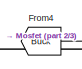
[diagram: root canvas - part 1/3, top center region]
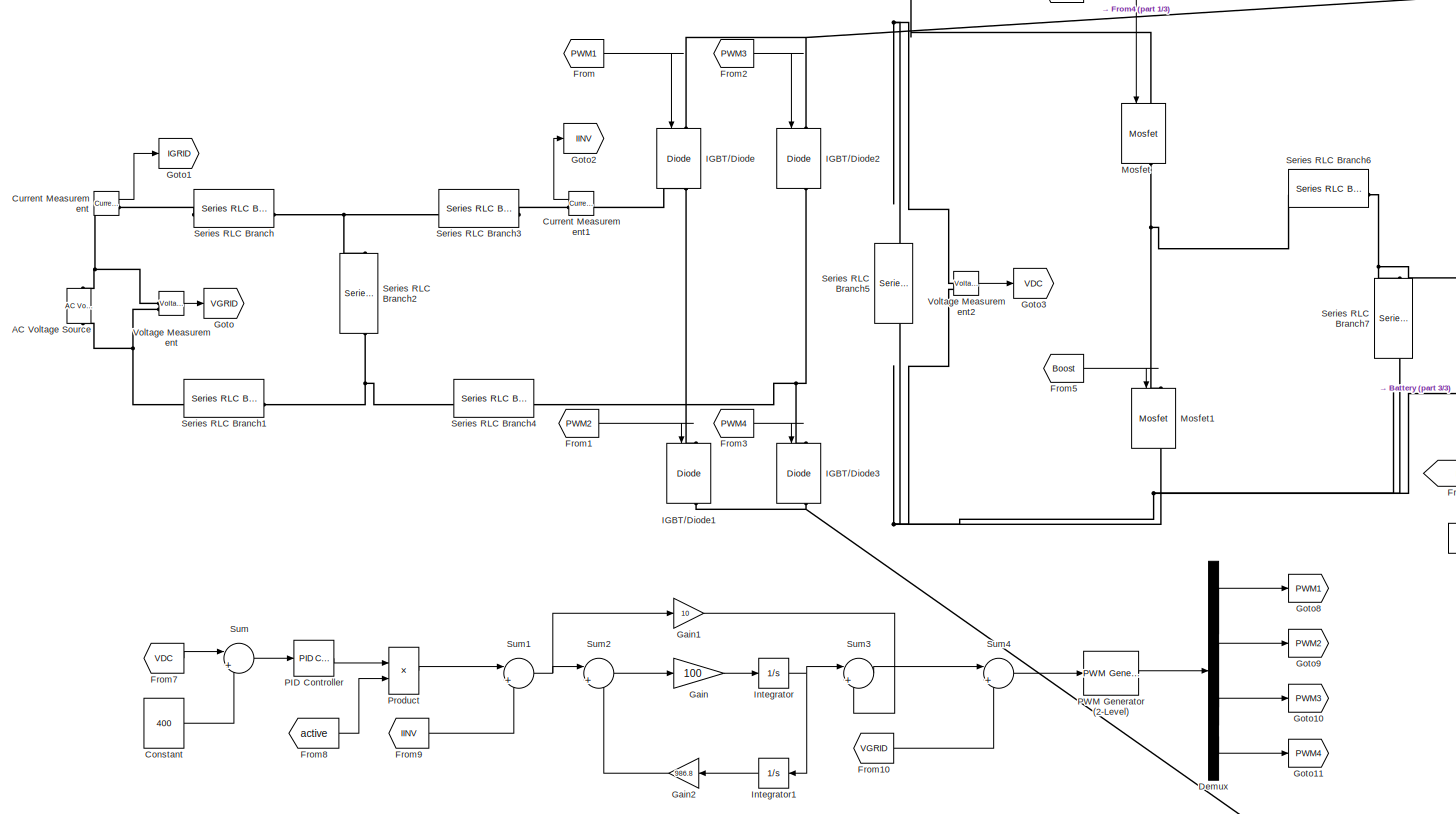
[diagram: root canvas - part 2/3, center side, full height]
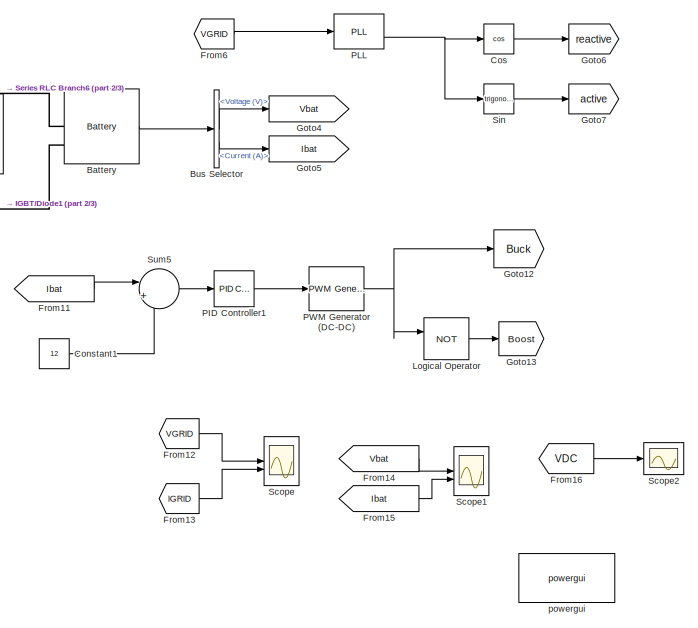
[diagram: root canvas - part 3/3, middle right region]
MODEL slx_612c8456ecf1
KIND model
CONFIG AbsTol = auto
CONFIG EnableMultiTasking = off
CONFIG FixedStep = auto
CONFIG MaxStep = auto
CONFIG MinStep = auto
CONFIG RelTol = 1e-3
CONFIG SampleTimeConstraint = Unconstrained
CONFIG SolverName = ode23t
CONFIG StartTime = 0.0
CONFIG StopTime = 1
BLOCK [Reference] AC Voltage Source  REF=spsACVoltageSourceLib/AC Voltage Source
  LibrarySourceBlock = sps_lib/Sources/AC Voltage Source
  SourceBlock = spsACVoltageSourceLib/AC Voltage Source
  SourceType = AC Voltage Source
BLOCK [Reference] Battery  REF=spsBatteryLib/Battery
  LibrarySourceBlock = sps_lib/Sources/Battery
  SourceBlock = spsBatteryLib/Battery
  SourceType = Battery
BLOCK [BusSelector] Bus Selector
  OutputSignals = Voltage (V),Current (A)
BLOCK [Constant] Constant
  Value = 400
BLOCK [Constant] Constant1
  Value = 12
BLOCK [Trigonometry] Cos
  Operator = cos
BLOCK [Reference] Current Measurement  REF=spsCurrentMeasurementLib/Current Measurement
  LibrarySourceBlock = sps_lib/Sensors and Measurements/Current Measurement
  SourceBlock = spsCurrentMeasurementLib/Current Measurement
  SourceType = Current Measurement
  UserDataPersistent = on
BLOCK [Reference] Current Measurement1  REF=spsCurrentMeasurementLib/Current Measurement
  LibrarySourceBlock = sps_lib/Sensors and Measurements/Current Measurement
  SourceBlock = spsCurrentMeasurementLib/Current Measurement
  SourceType = Current Measurement
  UserDataPersistent = on
BLOCK [Demux] Demux
BLOCK [From] From
  GotoTag = PWM1
BLOCK [From] From1
  GotoTag = PWM2
BLOCK [From] From10
  GotoTag = VGRID
BLOCK [From] From11
  GotoTag = Ibat
BLOCK [From] From12
  GotoTag = VGRID
BLOCK [From] From13
  GotoTag = IGRID
BLOCK [From] From14
  GotoTag = Vbat
BLOCK [From] From15
  GotoTag = Ibat
BLOCK [From] From16
  GotoTag = VDC
BLOCK [From] From2
  GotoTag = PWM3
BLOCK [From] From3
  GotoTag = PWM4
BLOCK [From] From4
  GotoTag = Buck
BLOCK [From] From5
  GotoTag = Boost
BLOCK [From] From6
  GotoTag = VGRID
BLOCK [From] From7
  GotoTag = VDC
BLOCK [From] From8
  GotoTag = active
BLOCK [From] From9
  GotoTag = IINV
BLOCK [Gain] Gain
  Gain = 100
BLOCK [Gain] Gain1
  Gain = 10
BLOCK [Gain] Gain2
  Gain = 986.8
  NameLocation = top
BLOCK [Goto] Goto
  GotoTag = VGRID
BLOCK [Goto] Goto1
  GotoTag = IGRID
BLOCK [Goto] Goto10
  GotoTag = PWM3
BLOCK [Goto] Goto11
  GotoTag = PWM4
BLOCK [Goto] Goto12
  GotoTag = Buck
BLOCK [Goto] Goto13
  GotoTag = Boost
BLOCK [Goto] Goto2
  GotoTag = IINV
BLOCK [Goto] Goto3
  GotoTag = VDC
BLOCK [Goto] Goto4
  GotoTag = Vbat
BLOCK [Goto] Goto5
  GotoTag = Ibat
BLOCK [Goto] Goto6
  GotoTag = reactive
BLOCK [Goto] Goto7
  GotoTag = active
BLOCK [Goto] Goto8
  GotoTag = PWM1
BLOCK [Goto] Goto9
  GotoTag = PWM2
BLOCK [Reference] IGBT//Diode  REF=spsIGBTDiodeLib/IGBT//Diode
  LibrarySourceBlock = sps_lib/Power Electronics/IGBT//Diode
  NameLocation = left
  SourceBlock = spsIGBTDiodeLib/IGBT//Diode
  SourceType = IGBT/Diode
BLOCK [Reference] IGBT//Diode1  REF=spsIGBTDiodeLib/IGBT//Diode
  LibrarySourceBlock = sps_lib/Power Electronics/IGBT//Diode
  NameLocation = left
  SourceBlock = spsIGBTDiodeLib/IGBT//Diode
  SourceType = IGBT/Diode
BLOCK [Reference] IGBT//Diode2  REF=spsIGBTDiodeLib/IGBT//Diode
  LibrarySourceBlock = sps_lib/Power Electronics/IGBT//Diode
  NameLocation = left
  SourceBlock = spsIGBTDiodeLib/IGBT//Diode
  SourceType = IGBT/Diode
BLOCK [Reference] IGBT//Diode3  REF=spsIGBTDiodeLib/IGBT//Diode
  LibrarySourceBlock = sps_lib/Power Electronics/IGBT//Diode
  NameLocation = left
  SourceBlock = spsIGBTDiodeLib/IGBT//Diode
  SourceType = IGBT/Diode
BLOCK [Integrator] Integrator
BLOCK [Integrator] Integrator1
  NameLocation = top
BLOCK [Logic] Logical Operator
  AllPortsSameDT = off
  Operator = NOT
  OutDataTypeStr = boolean
BLOCK [Reference] Mosfet  REF=spsMosfetLib/Mosfet
  LibrarySourceBlock = sps_lib/Power Electronics/Mosfet
  NameLocation = left
  SourceBlock = spsMosfetLib/Mosfet
  SourceType = Mosfet
BLOCK [Reference] Mosfet1  REF=spsMosfetLib/Mosfet
  LibrarySourceBlock = sps_lib/Power Electronics/Mosfet
  NameLocation = left
  SourceBlock = spsMosfetLib/Mosfet
  SourceType = Mosfet
BLOCK [Reference] PID Controller  REF=slpidlib/PID Controller
  LibrarySourceBlock = simulink/Continuous/PID Controller
  SourceBlock = slpidlib/PID Controller
  SourceType = PID 1dof
BLOCK [Reference] PID Controller1  REF=slpidlib/PID Controller
  LibrarySourceBlock = simulink/Continuous/PID Controller
  SourceBlock = slpidlib/PID Controller
  SourceType = PID 1dof
BLOCK [Reference] PLL  REF=spsPLLLib/PLL
  LibrarySourceBlock = sps_lib/Control/PLL
  SourceBlock = spsPLLLib/PLL
  SourceType = PLL
BLOCK [Reference] PWM Generator (2-Level)  REF=spsPWMGenerator2LevelLib/PWM Generator
(2-Level)
  LibrarySourceBlock = sps_lib/Power Electronics/Power Electronics Control/PWM Generator\n(2-Level)
  SourceBlock = spsPWMGenerator2LevelLib/PWM Generator\n(2-Level)
  SourceType = PWM Generator (2-Level)
BLOCK [Reference] PWM Generator (DC-DC)  REF=spsPWMGeneratorDCDCLib/PWM Generator
(DC-DC)
  LibrarySourceBlock = sps_lib/Power Electronics/Power Electronics Control/PWM Generator\n(DC-DC)
  SourceBlock = spsPWMGeneratorDCDCLib/PWM Generator\n(DC-DC)
  SourceType = PWM Generator (DC-DC)
BLOCK [Product] Product
BLOCK [Scope] Scope
  Floating = off
  NumInputPorts = 2
  ScopeSpecificationString = Simulink.scopes.TimeScopeBlockCfg('CurrentConfiguration', extmgr.ConfigurationSet(extmgr.Configuration('Core','General UI',true),extmgr.Configuration('Core','Source UI',true),extmgr.Configuration('Sources','WiredSimulink',true),extmgr.Configuration('Visuals','Time Domain',true,'SerializedDisplays',{struct('MinYLimReal','-406.25','MaxYLimReal','406.25','YLabelReal','','MinYLimMag',' 0.00000','MaxYL...<+1977ch>
BLOCK [Scope] Scope1
  Floating = off
  NumInputPorts = 2
  ScopeSpecificationString = Simulink.scopes.TimeScopeBlockCfg('CurrentConfiguration', extmgr.ConfigurationSet(extmgr.Configuration('Core','General UI',true),extmgr.Configuration('Core','Source UI',true),extmgr.Configuration('Sources','WiredSimulink',true,'DataLoggingVariableName','ScopeData1'),extmgr.Configuration('Visuals','Time Domain',true,'SerializedDisplays',{struct('MinYLimReal','32.09451','MaxYLimReal','187.95853','YL...<+2018ch>
BLOCK [Scope] Scope2
  Floating = off
  NumInputPorts = 1
  ScopeSpecificationString = Simulink.scopes.TimeScopeBlockCfg('CurrentConfiguration', extmgr.ConfigurationSet(extmgr.Configuration('Core','General UI',true),extmgr.Configuration('Core','Source UI',true),extmgr.Configuration('Sources','WiredSimulink',true,'DataLoggingVariableName','ScopeData2'),extmgr.Configuration('Visuals','Time Domain',true,'SerializedDisplays',{struct('MinYLimReal','380.62051','MaxYLimReal','404.00931','Y...<+1483ch>
BLOCK [Reference] Series RLC Branch  REF=spsSeriesRLCBranchLib/Series RLC Branch
  LibrarySourceBlock = sps_lib/Passives/Series RLC Branch
  SourceBlock = spsSeriesRLCBranchLib/Series RLC Branch
  SourceType = Series RLC Branch
BLOCK [Reference] Series RLC Branch1  REF=spsSeriesRLCBranchLib/Series RLC Branch
  LibrarySourceBlock = sps_lib/Passives/Series RLC Branch
  SourceBlock = spsSeriesRLCBranchLib/Series RLC Branch
  SourceType = Series RLC Branch
BLOCK [Reference] Series RLC Branch2  REF=spsSeriesRLCBranchLib/Series RLC Branch
  LibrarySourceBlock = sps_lib/Passives/Series RLC Branch
  NameLocation = left
  SourceBlock = spsSeriesRLCBranchLib/Series RLC Branch
  SourceType = Series RLC Branch
BLOCK [Reference] Series RLC Branch3  REF=spsSeriesRLCBranchLib/Series RLC Branch
  LibrarySourceBlock = sps_lib/Passives/Series RLC Branch
  SourceBlock = spsSeriesRLCBranchLib/Series RLC Branch
  SourceType = Series RLC Branch
BLOCK [Reference] Series RLC Branch4  REF=spsSeriesRLCBranchLib/Series RLC Branch
  LibrarySourceBlock = sps_lib/Passives/Series RLC Branch
  SourceBlock = spsSeriesRLCBranchLib/Series RLC Branch
  SourceType = Series RLC Branch
BLOCK [Reference] Series RLC Branch5  REF=spsSeriesRLCBranchLib/Series RLC Branch
  LibrarySourceBlock = sps_lib/Passives/Series RLC Branch
  NameLocation = left
  SourceBlock = spsSeriesRLCBranchLib/Series RLC Branch
  SourceType = Series RLC Branch
BLOCK [Reference] Series RLC Branch6  REF=spsSeriesRLCBranchLib/Series RLC Branch
  LibrarySourceBlock = sps_lib/Passives/Series RLC Branch
  SourceBlock = spsSeriesRLCBranchLib/Series RLC Branch
  SourceType = Series RLC Branch
BLOCK [Reference] Series RLC Branch7  REF=spsSeriesRLCBranchLib/Series RLC Branch
  LibrarySourceBlock = sps_lib/Passives/Series RLC Branch
  NameLocation = left
  SourceBlock = spsSeriesRLCBranchLib/Series RLC Branch
  SourceType = Series RLC Branch
BLOCK [Trigonometry] Sin
BLOCK [Sum] Sum
  Inputs = |+-
BLOCK [Sum] Sum1
  Inputs = |+-
BLOCK [Sum] Sum2
  Inputs = |+-
BLOCK [Sum] Sum3
  Inputs = |++
BLOCK [Sum] Sum4
  Inputs = |++
BLOCK [Sum] Sum5
  Inputs = |+-
BLOCK [Reference] Voltage Measurement  REF=spsVoltageMeasurementLib/Voltage Measurement
  LibrarySourceBlock = sps_lib/Sensors and Measurements/Voltage Measurement
  SourceBlock = spsVoltageMeasurementLib/Voltage Measurement
  SourceType = Voltage Measurement
  UserDataPersistent = on
BLOCK [Reference] Voltage Measurement2  REF=spsVoltageMeasurementLib/Voltage Measurement
  LibrarySourceBlock = sps_lib/Sensors and Measurements/Voltage Measurement
  SourceBlock = spsVoltageMeasurementLib/Voltage Measurement
  SourceType = Voltage Measurement
  UserDataPersistent = on
BLOCK [Reference] powergui  REF=sps_lib/powergui
  LibrarySourceBlock = sps_lib/powergui
  Priority = 1
  SourceBlock = sps_lib/powergui
  SourceType = PSB option menu block
LINE Battery:1 -> Bus Selector:1
LINE Bus Selector:1 -> Goto4:1
LINE Bus Selector:2 -> Goto5:1
LINE Constant1:1 -> Sum5:2
LINE Constant:1 -> Sum:2
LINE Cos:1 -> Goto6:1
LINE Current Measurement1:1 -> Goto2:1
LINE Current Measurement:1 -> Goto1:1
LINE Demux:1 -> Goto8:1
LINE Demux:2 -> Goto9:1
LINE Demux:3 -> Goto10:1
LINE Demux:4 -> Goto11:1
LINE From10:1 -> Sum4:2
LINE From11:1 -> Sum5:1
LINE From12:1 -> Scope:1
LINE From13:1 -> Scope:2
LINE From14:1 -> Scope1:1
LINE From15:1 -> Scope1:2
LINE From16:1 -> Scope2:1
LINE From1:1 -> IGBT//Diode1:1
LINE From2:1 -> IGBT//Diode2:1
LINE From3:1 -> IGBT//Diode3:1
LINE From4:1 -> Mosfet:1
LINE From5:1 -> Mosfet1:1
LINE From6:1 -> PLL:1
LINE From7:1 -> Sum:1
LINE From8:1 -> Product:2
LINE From9:1 -> Sum1:2
LINE From:1 -> IGBT//Diode:1
LINE Gain1:1 -> Sum3:2
LINE Gain2:1 -> Sum2:2
LINE Gain:1 -> Integrator:1
LINE Integrator1:1 -> Gain2:1
NET Integrator:1 -> Integrator1:1, Sum3:1
LINE Logical Operator:1 -> Goto13:1
LINE PID Controller1:1 -> PWM Generator (DC-DC):1
LINE PID Controller:1 -> Product:1
NET PLL:2 -> Cos:1, Sin:1
LINE PWM Generator (2-Level):1 -> Demux:1
NET PWM Generator (DC-DC):1 -> Goto12:1, Logical Operator:1
LINE Product:1 -> Sum1:1
LINE Sin:1 -> Goto7:1
NET Sum1:1 -> Gain1:1, Sum2:1
LINE Sum2:1 -> Gain:1
LINE Sum3:1 -> Sum4:1
LINE Sum4:1 -> PWM Generator (2-Level):1
LINE Sum5:1 -> PID Controller1:1
LINE Sum:1 -> PID Controller:1
LINE Voltage Measurement2:1 -> Goto3:1
LINE Voltage Measurement:1 -> Goto:1
PNET net1: AC Voltage Source:LConn1 -- Series RLC Branch1:LConn1 -- Voltage Measurement:LConn2
PNET net2: AC Voltage Source:RConn1 -- Current Measurement:LConn1 -- Voltage Measurement:LConn1
PNET net3: Battery:LConn1 -- Series RLC Branch6:RConn1 -- Series RLC Branch7:LConn1
PNET net4: Battery:LConn2 -- IGBT//Diode1:RConn1 -- IGBT//Diode3:RConn1 -- Mosfet1:RConn1 -- Series RLC Branch5:RConn1 -- Series RLC Branch7:RConn1 -- Voltage Measurement2:LConn2
PNET net5: Current Measurement1:LConn1 -- IGBT//Diode1:LConn1 -- IGBT//Diode:RConn1
PLINE Current Measurement1:RConn1 -- Series RLC Branch3:RConn1
PLINE Current Measurement:RConn1 -- Series RLC Branch:LConn1
PNET net6: IGBT//Diode2:LConn1 -- IGBT//Diode:LConn1 -- Mosfet:LConn1 -- Series RLC Branch5:LConn1 -- Voltage Measurement2:LConn1
PNET net7: IGBT//Diode2:RConn1 -- IGBT//Diode3:LConn1 -- Series RLC Branch4:RConn1
PNET net8: Mosfet1:LConn1 -- Mosfet:RConn1 -- Series RLC Branch6:LConn1
PNET net9: Series RLC Branch1:RConn1 -- Series RLC Branch2:RConn1 -- Series RLC Branch4:LConn1
PNET net10: Series RLC Branch2:LConn1 -- Series RLC Branch3:LConn1 -- Series RLC Branch:RConn1
note: NET lines group one-source signal fan-out (src -> all destinations, sorted); 1:1 wires keep LINE; PNET lines group multi-terminal physical nets as a canonical sorted terminal list (undirected conserving connections); 2-terminal nets keep the pairwise PLINE form
